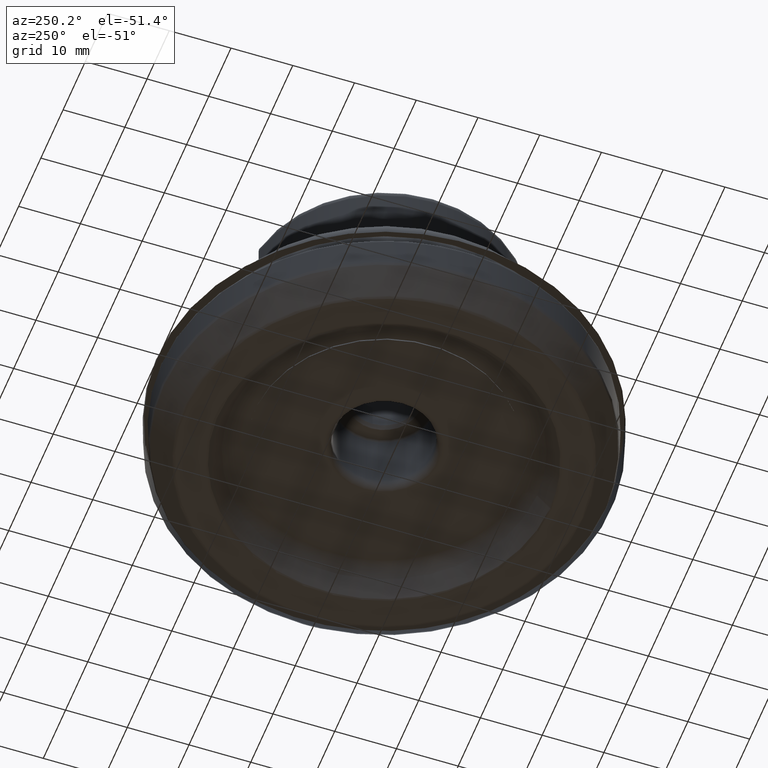
[diagram: clean part render]
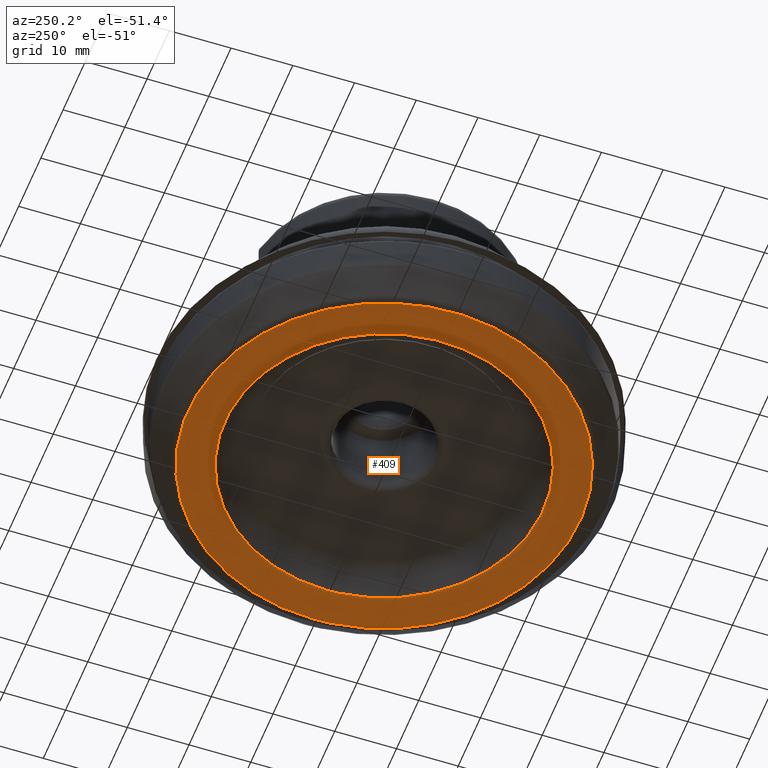
[diagram: same view with one face highlighted and labeled with its STEP entity id]
A machine part, auxiliary view. The second image highlights one B-rep face of the part: STEP entity #409.
In plain terms, the highlighted face is a SurfaceOfRevolution surface.
Its self-contained STEP definition (entity closure, byte-faithful):
#130=SURFACE_OF_REVOLUTION('',#318,#155);
#155=AXIS1_PLACEMENT('',#2080,#1348);
#266=FACE_BOUND('',#546,.T.);
#267=FACE_BOUND('',#547,.T.);
#318=LINE('',#2079,#346);
#346=VECTOR('',#1347,5.97815706144228);
#409=ADVANCED_FACE('',(#266,#267),#130,.F.);
#546=EDGE_LOOP('',(#791));
#547=EDGE_LOOP('',(#792));
#604=CIRCLE('',#1115,31.75);
#605=CIRCLE('',#1116,25.7790134985655);
#791=ORIENTED_EDGE('',*,*,#972,.T.);
#792=ORIENTED_EDGE('',*,*,#973,.F.);
#876=VERTEX_POINT('',#2071);
#877=VERTEX_POINT('',#2078);
#972=EDGE_CURVE('',#876,#876,#604,.T.);
#973=EDGE_CURVE('',#877,#877,#605,.T.);
#1115=AXIS2_PLACEMENT_3D('',#2070,#1342,#1343);
#1116=AXIS2_PLACEMENT_3D('',#2077,#1345,#1346);
#1342=DIRECTION('',(1.17145536458252E-15,0.,1.));
#1343=DIRECTION('',(1.,0.,-1.17145536458252E-15));
#1345=DIRECTION('',(1.17145536458252E-15,0.,1.));
#1346=DIRECTION('',(1.,0.,-1.17143422253884E-15));
#1347=DIRECTION('',(-1.1077592146389E-16,-0.99999860094217,-0.00167275631891618));
#1348=DIRECTION('',(1.17145536458252E-15,0.,1.));
#2070=CARTESIAN_POINT('',(-2.81802206371132E-30,0.,-2.40557357020221E-15));
#2071=CARTESIAN_POINT('',(31.75,0.,-3.95992813956974E-14));
#2077=CARTESIAN_POINT('',(1.17145536226859E-17,0.,0.00999999998024736));
#2078=CARTESIAN_POINT('',(25.7790134985655,0.,0.00999999998021717));
#2079=CARTESIAN_POINT('',(1.40000000000001,-25.7409701425652,0.00999999999999689));
#2080=CARTESIAN_POINT('',(0.,0.,0.));